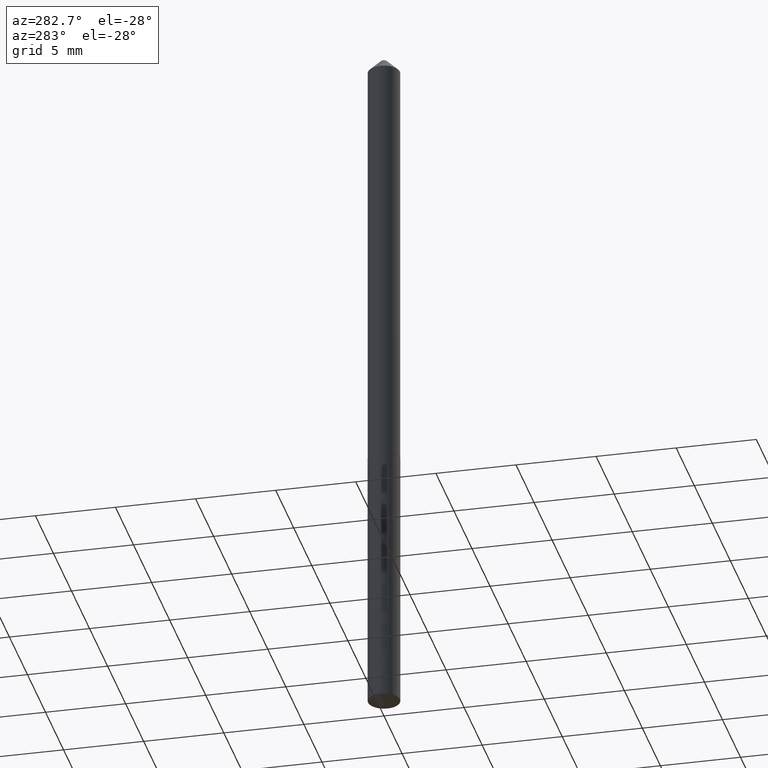
[diagram: clean part render]
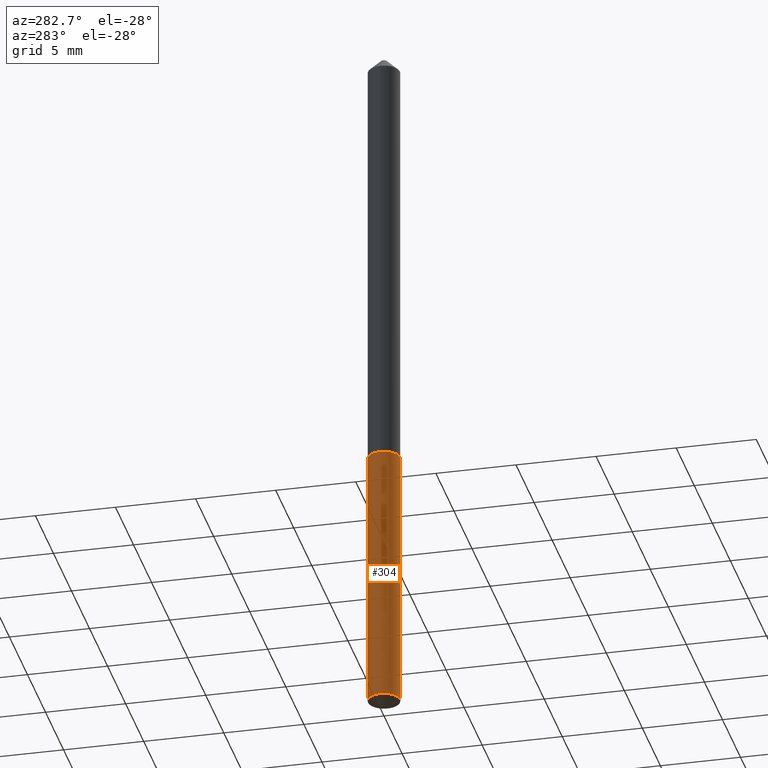
[diagram: same view with one face highlighted and labeled with its STEP entity id]
A machine part, auxiliary view. The second image highlights one B-rep face of the part: STEP entity #304.
In plain terms, the highlighted cylindrical surface (edge-blend (fillet) strip) has radius 0.997 mm, axis along (-0, 0, 1).
Its self-contained STEP definition (entity closure, byte-faithful):
#1 = DIRECTION ( 'NONE',  ( -2.445483709436651737E-29, 3.491459996538735654E-15, 1.000000000000000000 ) ) ;
#24 = CARTESIAN_POINT ( 'NONE',  ( 2.788880237858818240E-16, 0.03924999999999623235, -1.078500000000000014 ) ) ;
#26 = ORIENTED_EDGE ( 'NONE', *, *, #152, .T. ) ;
#28 = FACE_OUTER_BOUND ( 'NONE', #38, .T. ) ;
#30 = DIRECTION ( 'NONE',  ( -2.445483709436651737E-29, 3.491459996538735654E-15, 1.000000000000000000 ) ) ;
#36 = EDGE_CURVE ( 'NONE', #147, #69, #138, .T. ) ;
#38 = EDGE_LOOP ( 'NONE', ( #302, #264, #26, #367 ) ) ;
#46 = AXIS2_PLACEMENT_3D ( 'NONE', #307, #169, #145 ) ;
#48 = CARTESIAN_POINT ( 'NONE',  ( 2.788880237858818240E-16, 0.03924999999999394251, -1.735714168305051652 ) ) ;
#58 = LINE ( 'NONE', #84, #305 ) ;
#69 = VERTEX_POINT ( 'NONE', #202 ) ;
#80 = AXIS2_PLACEMENT_3D ( 'NONE', #269, #1, #236 ) ;
#82 = CYLINDRICAL_SURFACE ( 'NONE', #80, 0.03925000000000000017 ) ;
#84 = CARTESIAN_POINT ( 'NONE',  ( 2.788880237858656524E-16, 0.03924999999999623235, -1.078500000000000014 ) ) ;
#123 = CARTESIAN_POINT ( 'NONE',  ( -2.740812850991435691E-16, -0.03925000000000607864, -1.735714168305051430 ) ) ;
#138 = CIRCLE ( 'NONE', #46, 0.03925000000000000017 ) ;
#145 = DIRECTION ( 'NONE',  ( -6.982962677686264344E-15, -1.000000000000000000, 3.480061138425812861E-15 ) ) ;
#147 = VERTEX_POINT ( 'NONE', #24 ) ;
#149 = DIRECTION ( 'NONE',  ( -2.445483709436651456E-29, 3.491459996538735654E-15, 1.000000000000000000 ) ) ;
#152 = EDGE_CURVE ( 'NONE', #277, #69, #326, .T. ) ;
#163 = VERTEX_POINT ( 'NONE', #48 ) ;
#169 = DIRECTION ( 'NONE',  ( -2.445483709436651737E-29, 3.491459996538735654E-15, 1.000000000000000000 ) ) ;
#185 = CARTESIAN_POINT ( 'NONE',  ( -2.740812850991594942E-16, -0.03925000000000376105, -1.078499999999999792 ) ) ;
#202 = CARTESIAN_POINT ( 'NONE',  ( -2.740812850991594942E-16, -0.03925000000000376105, -1.078499999999999792 ) ) ;
#216 = VECTOR ( 'NONE', #149, 39.37007874015748143 ) ;
#220 = EDGE_CURVE ( 'NONE', #163, #277, #324, .T. ) ;
#225 = DIRECTION ( 'NONE',  ( -2.445483709436651456E-29, 3.491459996538735654E-15, 1.000000000000000000 ) ) ;
#236 = DIRECTION ( 'NONE',  ( -6.982962677686264344E-15, -1.000000000000000000, 3.480061138425812861E-15 ) ) ;
#264 = ORIENTED_EDGE ( 'NONE', *, *, #220, .T. ) ;
#269 = CARTESIAN_POINT ( 'NONE',  ( 2.637438107470669995E-29, -3.765562623942332293E-15, -1.078500000000000014 ) ) ;
#277 = VERTEX_POINT ( 'NONE', #123 ) ;
#293 = CARTESIAN_POINT ( 'NONE',  ( 4.244644649671631606E-29, -6.060199601737895499E-15, -1.735714168305051652 ) ) ;
#302 = ORIENTED_EDGE ( 'NONE', *, *, #341, .F. ) ;
#304 = ADVANCED_FACE ( 'NONE', ( #28 ), #82, .T. ) ;
#305 = VECTOR ( 'NONE', #225, 39.37007874015748143 ) ;
#307 = CARTESIAN_POINT ( 'NONE',  ( 2.637438107470669995E-29, -3.765562623942332293E-15, -1.078500000000000014 ) ) ;
#324 = CIRCLE ( 'NONE', #337, 0.03925000000000000017 ) ;
#326 = LINE ( 'NONE', #185, #216 ) ;
#337 = AXIS2_PLACEMENT_3D ( 'NONE', #293, #30, #350 ) ;
#341 = EDGE_CURVE ( 'NONE', #163, #147, #58, .T. ) ;
#350 = DIRECTION ( 'NONE',  ( -6.982962677686264344E-15, -1.000000000000000000, 6.960122276851625723E-15 ) ) ;
#367 = ORIENTED_EDGE ( 'NONE', *, *, #36, .F. ) ;